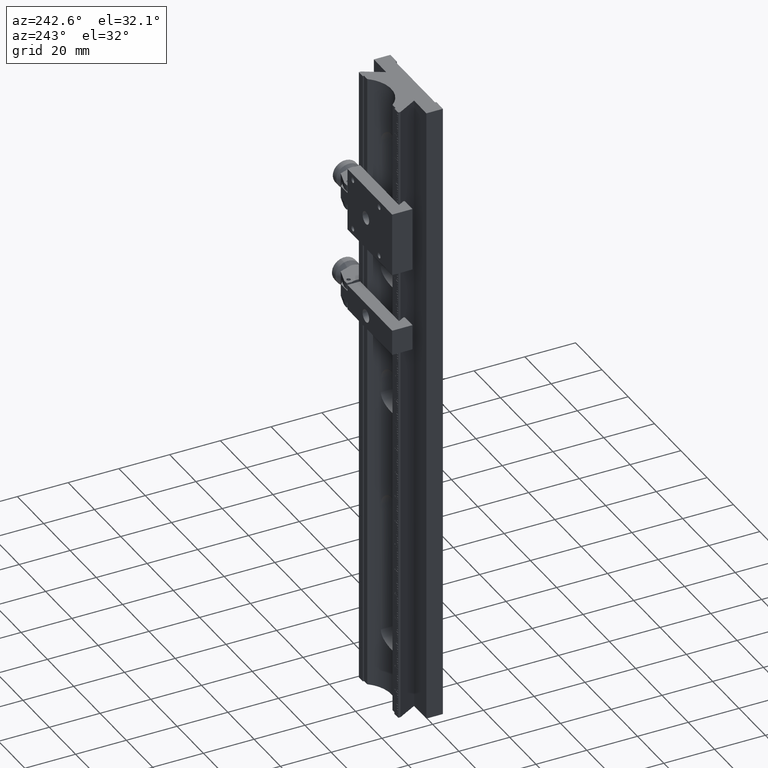
[diagram: clean part render]
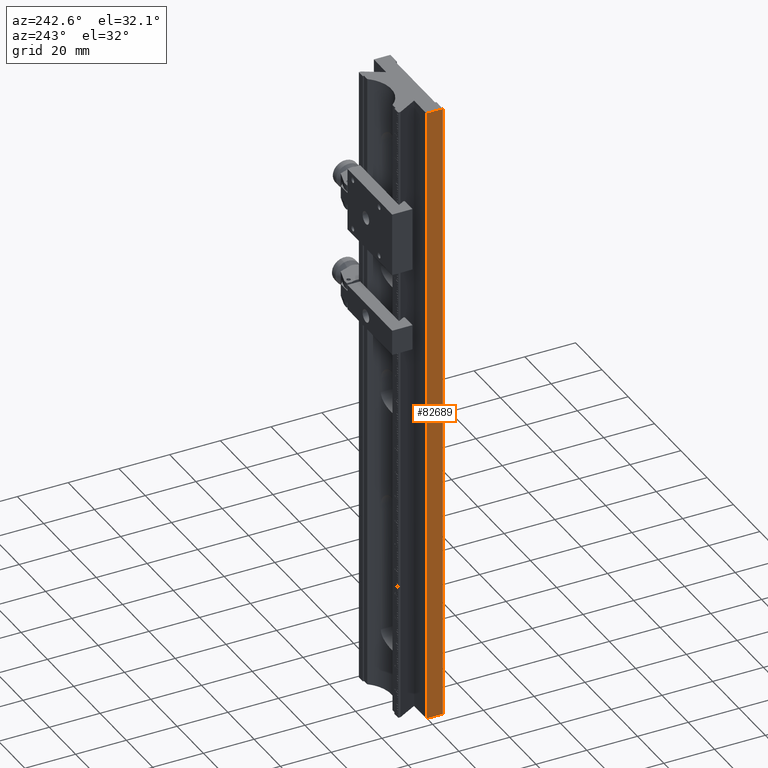
[diagram: same view with one face highlighted and labeled with its STEP entity id]
A machine part, auxiliary view. The second image highlights one B-rep face of the part: STEP entity #82689.
In plain terms, the highlighted planar face has unit normal (1, 0, 0).
Its self-contained STEP definition (entity closure, byte-faithful):
#194 = CARTESIAN_POINT ( 'NONE',  ( -41.10659485934299795, 3.043211375064999835, 125.0000000000000000 ) ) ;
#4180 = ORIENTED_EDGE ( 'NONE', *, *, #40446, .F. ) ;
#4233 = EDGE_CURVE ( 'NONE', #39255, #34229, #76060, .T. ) ;
#5549 = CARTESIAN_POINT ( 'NONE',  ( -41.10659485934299795, 3.043211375064999835, 125.0000000000000000 ) ) ;
#11164 = B_SPLINE_CURVE_WITH_KNOTS ( 'NONE', 3,
 ( #5549, #74082, #73200, #58438 ),
 .UNSPECIFIED., .F., .F.,
 ( 4, 4 ),
 ( 0.000000000000000000, 1.000000000000000000 ),
 .UNSPECIFIED. ) ;
#11757 = FACE_OUTER_BOUND ( 'NONE', #58268, .T. ) ;
#14902 = AXIS2_PLACEMENT_3D ( 'NONE', #86990, #45779, #72665 ) ;
#16246 = CARTESIAN_POINT ( 'NONE',  ( -41.10659485934299795, -3.456788624934999721, -125.0000000000000000 ) ) ;
#17566 = CARTESIAN_POINT ( 'NONE',  ( -41.10659485934299795, 0.8765447083983347598, -125.0000000000000000 ) ) ;
#17711 = VERTEX_POINT ( 'NONE', #52274 ) ;
#24740 = CARTESIAN_POINT ( 'NONE',  ( -41.10659485934299795, -1.290121958268335645, -125.0000000000000000 ) ) ;
#28557 = CARTESIAN_POINT ( 'NONE',  ( -41.10659485934299795, 3.043211375064999835, -125.0000000000000000 ) ) ;
#29712 = VERTEX_POINT ( 'NONE', #194 ) ;
#34067 = B_SPLINE_CURVE_WITH_KNOTS ( 'NONE', 3,
 ( #88084, #75084, #88503, #68367 ),
 .UNSPECIFIED., .F., .F.,
 ( 4, 4 ),
 ( 0.000000000000000000, 1.000000000000000000 ),
 .UNSPECIFIED. ) ;
#34229 = VERTEX_POINT ( 'NONE', #16246 ) ;
#39255 = VERTEX_POINT ( 'NONE', #28557 ) ;
#39272 = EDGE_CURVE ( 'NONE', #34229, #17711, #44367, .T. ) ;
#40446 = EDGE_CURVE ( 'NONE', #29712, #17711, #11164, .T. ) ;
#44367 = B_SPLINE_CURVE_WITH_KNOTS ( 'NONE', 3,
 ( #69755, #81871, #47847, #76481 ),
 .UNSPECIFIED., .F., .F.,
 ( 4, 4 ),
 ( 0.000000000000000000, 1.000000000000000000 ),
 .UNSPECIFIED. ) ;
#44810 = ORIENTED_EDGE ( 'NONE', *, *, #4233, .T. ) ;
#45779 = DIRECTION ( 'NONE',  ( 1.000000000000000000, 5.337610695313250398E-16, 0.000000000000000000 ) ) ;
#46210 = CARTESIAN_POINT ( 'NONE',  ( -41.10659485934299795, -3.456788624934999721, -125.0000000000000000 ) ) ;
#47847 = CARTESIAN_POINT ( 'NONE',  ( -41.10659485934299795, -3.456788624934999721, 41.66666666666665009 ) ) ;
#52274 = CARTESIAN_POINT ( 'NONE',  ( -41.10659485934299795, -3.456788624934999721, 125.0000000000000000 ) ) ;
#52797 = ORIENTED_EDGE ( 'NONE', *, *, #85959, .F. ) ;
#58268 = EDGE_LOOP ( 'NONE', ( #86085, #4180, #52797, #44810 ) ) ;
#58438 = CARTESIAN_POINT ( 'NONE',  ( -41.10659485934299795, -3.456788624934999721, 125.0000000000000000 ) ) ;
#58765 = CARTESIAN_POINT ( 'NONE',  ( -41.10659485934299795, 3.043211375064999835, -125.0000000000000000 ) ) ;
#68367 = CARTESIAN_POINT ( 'NONE',  ( -41.10659485934299795, 3.043211375064999835, 125.0000000000000000 ) ) ;
#69755 = CARTESIAN_POINT ( 'NONE',  ( -41.10659485934299795, -3.456788624934999721, -125.0000000000000000 ) ) ;
#72665 = DIRECTION ( 'NONE',  ( -5.337610695313250398E-16, 1.000000000000000000, 0.000000000000000000 ) ) ;
#73200 = CARTESIAN_POINT ( 'NONE',  ( -41.10659485934299795, -1.290121958268335645, 125.0000000000000000 ) ) ;
#74082 = CARTESIAN_POINT ( 'NONE',  ( -41.10659485934299795, 0.8765447083983347598, 125.0000000000000000 ) ) ;
#75084 = CARTESIAN_POINT ( 'NONE',  ( -41.10659485934299795, 3.043211375064999835, -41.66666666666665009 ) ) ;
#76060 = B_SPLINE_CURVE_WITH_KNOTS ( 'NONE', 3,
 ( #58765, #17566, #24740, #46210 ),
 .UNSPECIFIED., .F., .F.,
 ( 4, 4 ),
 ( 0.000000000000000000, 1.000000000000000000 ),
 .UNSPECIFIED. ) ;
#76481 = CARTESIAN_POINT ( 'NONE',  ( -41.10659485934299795, -3.456788624934999721, 125.0000000000000000 ) ) ;
#81871 = CARTESIAN_POINT ( 'NONE',  ( -41.10659485934299795, -3.456788624934999721, -41.66666666666665009 ) ) ;
#82689 = ADVANCED_FACE ( 'NONE', ( #11757 ), #86110, .F. ) ;
#85959 = EDGE_CURVE ( 'NONE', #39255, #29712, #34067, .T. ) ;
#86085 = ORIENTED_EDGE ( 'NONE', *, *, #39272, .T. ) ;
#86110 = PLANE ( 'NONE',  #14902 ) ;
#86990 = CARTESIAN_POINT ( 'NONE',  ( -41.10659485934299795, -3.456788624934999721, 125.0000000000000000 ) ) ;
#88084 = CARTESIAN_POINT ( 'NONE',  ( -41.10659485934299795, 3.043211375064999835, -125.0000000000000000 ) ) ;
#88503 = CARTESIAN_POINT ( 'NONE',  ( -41.10659485934299795, 3.043211375064999835, 41.66666666666665009 ) ) ;